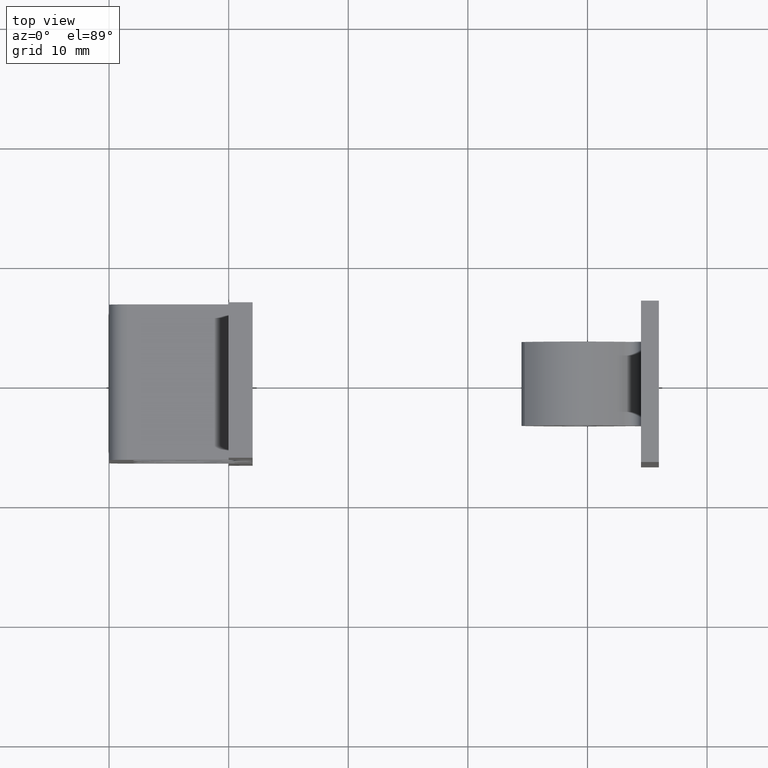
[diagram: clean part render]
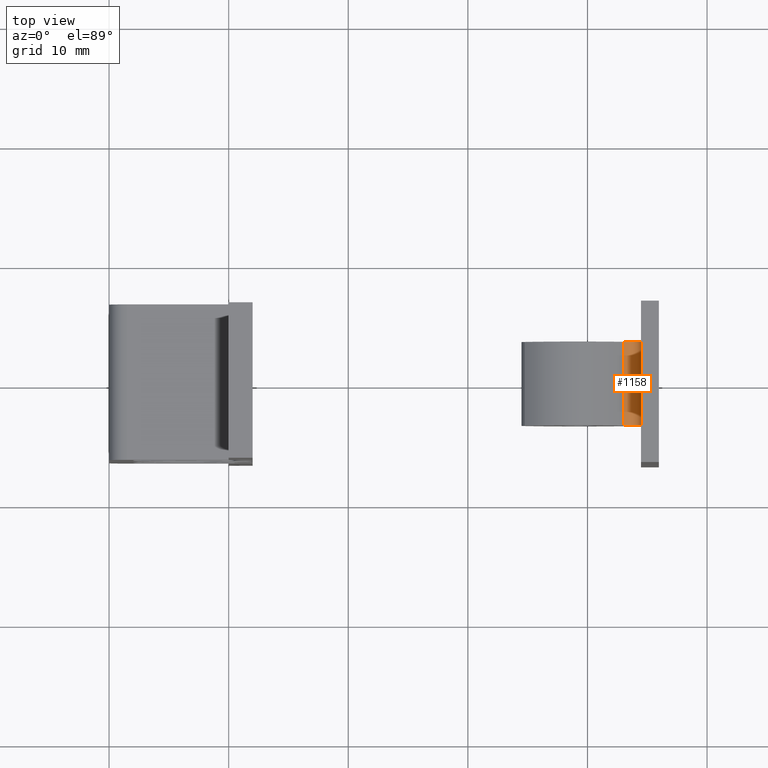
[diagram: same view with one face highlighted and labeled with its STEP entity id]
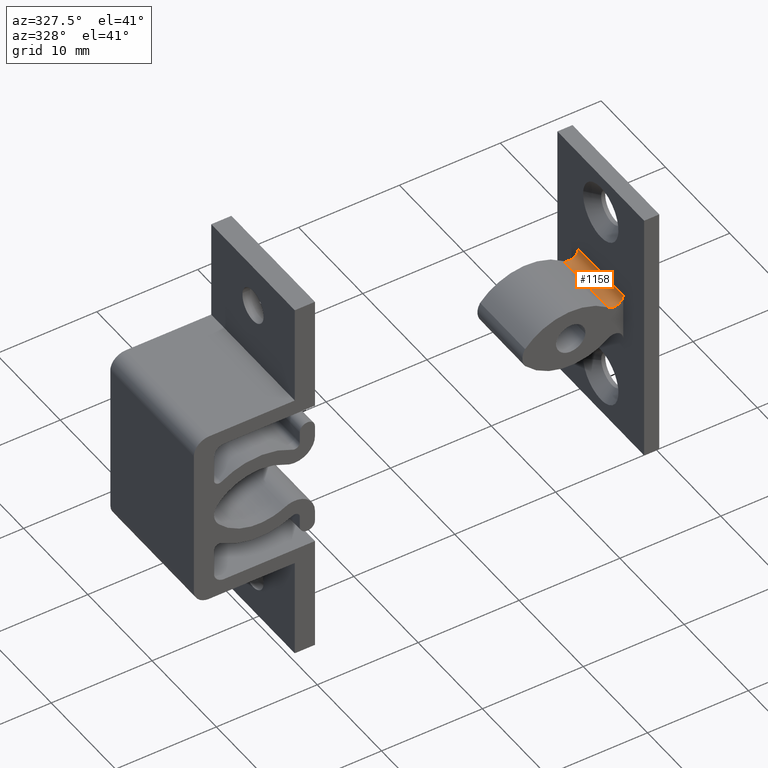
[diagram: same view with one face highlighted and labeled with its STEP entity id]
A machine part, top view. The second image highlights one B-rep face of the part: STEP entity #1158.
A second angle (auxiliary view) of the same face is appended — the face is thin or edge-on in the first view.
In plain terms, the highlighted face is a freeform B-spline surface patch.
Its self-contained STEP definition (entity closure, byte-faithful):
#892=CARTESIAN_POINT('',(43.008706276466512,3.499999999999950,1.696276913647590));
#893=VERTEX_POINT('',#892);
#916=CARTESIAN_POINT('',(43.008706276466512,-3.499999999999950,1.696276913647590));
#917=VERTEX_POINT('',#916);
#931=CARTESIAN_POINT('',(43.008706276466512,-3.499999999999950,1.696276913647590));
#932=CARTESIAN_POINT('',(43.008706276466512,3.499999999999950,1.696276913647590));
#933=QUASI_UNIFORM_CURVE('',1,(#931,#932),.UNSPECIFIED.,.F.,.U.);
#934=EDGE_CURVE('',#917,#893,#933,.T.);
#1102=CARTESIAN_POINT('',(42.990385010998743,-3.674999999999948,1.711240637582263));
#1103=CARTESIAN_POINT('',(42.990385010998743,3.679374999999949,1.711240637582263));
#1104=CARTESIAN_POINT('',(44.509496428074968,-3.674999999999950,0.437010480621416));
#1105=CARTESIAN_POINT('',(44.509496428074968,3.679374999999950,0.437010480621416));
#1106=CARTESIAN_POINT('',(44.474543373726661,-3.674999999999948,2.419468620000785));
#1107=CARTESIAN_POINT('',(44.474543373726661,3.679374999999949,2.419468620000785));
#1115=(BOUNDED_SURFACE()B_SPLINE_SURFACE(1,2,((#1102,#1104,#1106),(#1103,#1105,#1107)),.UNSPECIFIED.,.F.,.F.,.U.)B_SPLINE_SURFACE_WITH_KNOTS((2,2),(3,3),(0.0,7.354374999999897),(0.0,2.324856695774928),.UNSPECIFIED.)GEOMETRIC_REPRESENTATION_ITEM()RATIONAL_B_SPLINE_SURFACE(((1.0,0.414693242656239,1.0),(1.0,0.414693242656239,1.0)))REPRESENTATION_ITEM('')SURFACE());
#1116=CARTESIAN_POINT('',(44.474221401069450,3.499999999999950,2.374636172649565));
#1117=VERTEX_POINT('',#1116);
#1118=CARTESIAN_POINT('',(43.008706276466512,3.499999999999950,1.696276913647590));
#1119=CARTESIAN_POINT('',(43.444910700877898,3.499999999999950,1.349429612400283));
#1120=CARTESIAN_POINT('',(43.950652954595668,3.499999999999950,1.583528145208811));
#1121=CARTESIAN_POINT('',(44.456395208313424,3.499999999999950,1.817626678017339));
#1122=CARTESIAN_POINT('',(44.474221401069492,3.499999999999950,2.374636172649563));
#1130=(BOUNDED_CURVE()B_SPLINE_CURVE(2,(#1118,#1119,#1120,#1121,#1122),.UNSPECIFIED.,.F.,.U.)B_SPLINE_CURVE_WITH_KNOTS((3,2,3),(0.0,0.500000000000000,1.0),.UNSPECIFIED.)CURVE()GEOMETRIC_REPRESENTATION_ITEM()RATIONAL_B_SPLINE_CURVE((1.0,0.851139090605953,1.0,0.851139090605953,1.0))REPRESENTATION_ITEM(''));
#1131=EDGE_CURVE('',#893,#1117,#1130,.T.);
#1132=ORIENTED_EDGE('',*,*,#1131,.F.);
#1133=ORIENTED_EDGE('',*,*,#934,.F.);
#1134=CARTESIAN_POINT('',(44.474221401069450,-3.499999999999950,2.374636172647525));
#1135=VERTEX_POINT('',#1134);
#1136=CARTESIAN_POINT('',(43.008706276466512,-3.499999999999950,1.696276913647590));
#1137=CARTESIAN_POINT('',(43.444910700877351,-3.499999999999949,1.349429612400722));
#1138=CARTESIAN_POINT('',(43.950652954594737,-3.499999999999950,1.583528145208383));
#1139=CARTESIAN_POINT('',(44.456395208312124,-3.499999999999949,1.817626678016044));
#1140=CARTESIAN_POINT('',(44.474221401069421,-3.499999999999950,2.374636172647526));
#1148=(BOUNDED_CURVE()B_SPLINE_CURVE(2,(#1136,#1137,#1138,#1139,#1140),.UNSPECIFIED.,.F.,.U.)B_SPLINE_CURVE_WITH_KNOTS((3,2,3),(0.0,0.500000000000000,1.0),.UNSPECIFIED.)CURVE()GEOMETRIC_REPRESENTATION_ITEM()RATIONAL_B_SPLINE_CURVE((1.0,0.851139090606249,1.0,0.851139090606249,1.0))REPRESENTATION_ITEM(''));
#1149=EDGE_CURVE('',#917,#1135,#1148,.T.);
#1150=ORIENTED_EDGE('',*,*,#1149,.T.);
#1151=CARTESIAN_POINT('',(44.474221401069450,-3.499999999999950,2.374636172647525));
#1152=CARTESIAN_POINT('',(44.474221401069450,3.499999999999950,2.374636172649565));
#1153=QUASI_UNIFORM_CURVE('',1,(#1151,#1152),.UNSPECIFIED.,.F.,.U.);
#1154=EDGE_CURVE('',#1135,#1117,#1153,.T.);
#1155=ORIENTED_EDGE('',*,*,#1154,.T.);
#1156=EDGE_LOOP('',(#1132,#1133,#1150,#1155));
#1157=FACE_OUTER_BOUND('',#1156,.T.);
#1158=ADVANCED_FACE('',(#1157),#1115,.F.);